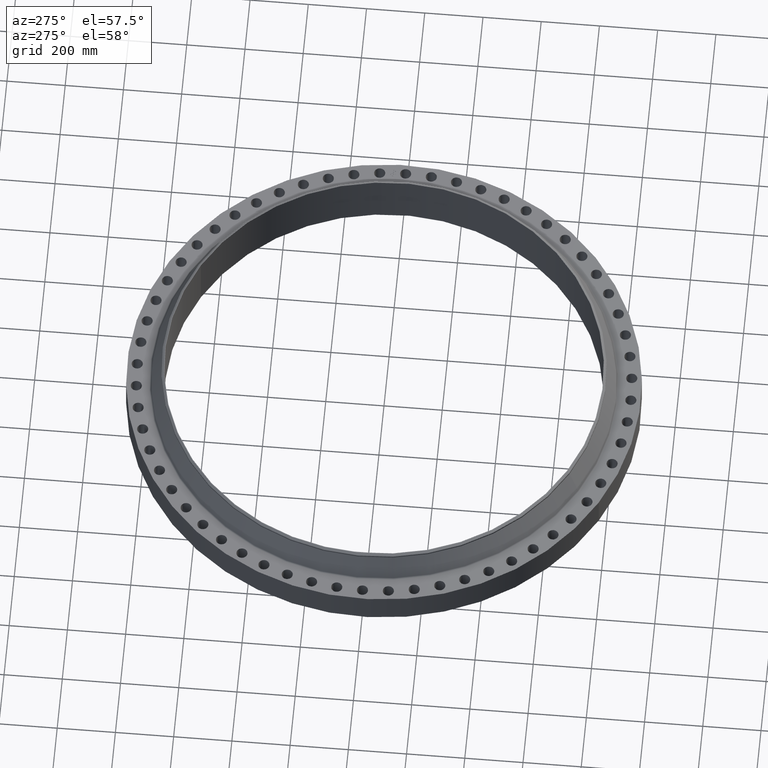
[diagram: clean part render]
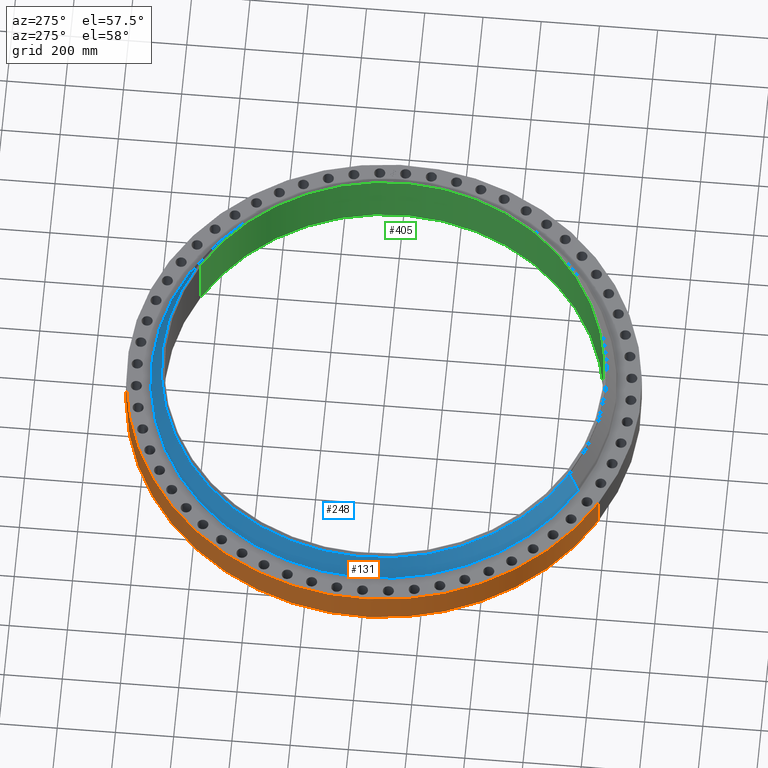
[diagram: same view with three faces highlighted in distinct colors, each labeled with its STEP entity id]
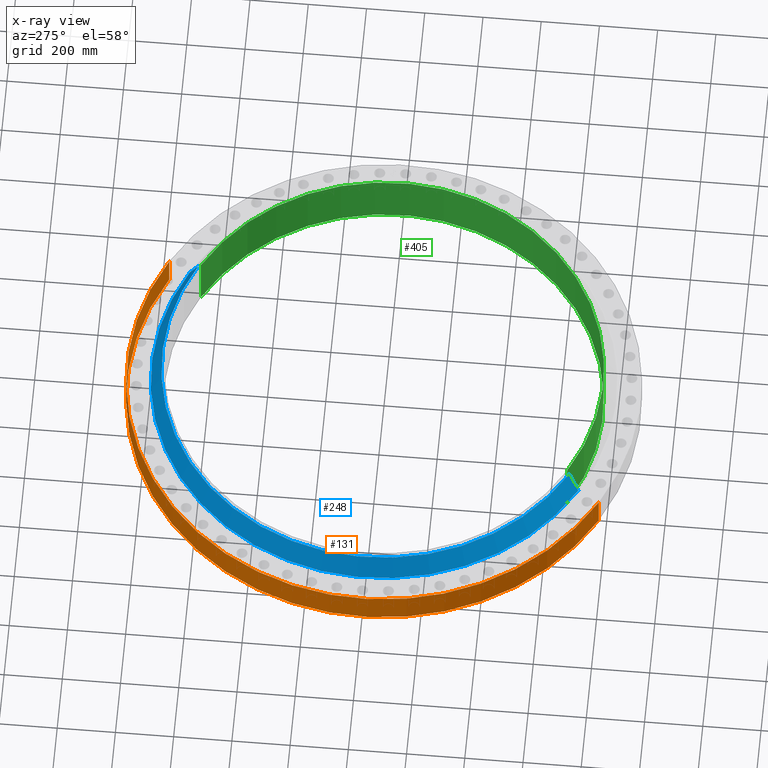
[diagram: x-ray of the same camera — body ghosted, the three highlighted faces saturated]
A machine part, auxiliary view with three faces highlighted in distinct colors.
The next image is the same camera in x-ray (body ghosted, the three faces saturated) — at least one of them is partly hidden behind the body in this view.
Their STEP definitions:

[orange] entity #131 — the highlighted cylindrical surface (partial cylindrical patch) has radius 882.65 mm, axis along (0, 0, -1).
#95=AXIS2_PLACEMENT_3D('Cylinder Axis2P3D',#92,#93,#94) ;
#99=AXIS2_PLACEMENT_3D('Circle Axis2P3D',#97,#98,$) ;
#115=AXIS2_PLACEMENT_3D('Circle Axis2P3D',#113,#114,$) ;
#92=CARTESIAN_POINT('Axis2P3D Location',(0.,0.,4.05000000002)) ;
#97=CARTESIAN_POINT('Axis2P3D Location',(0.,0.,4.47585975282E-015)) ;
#101=CARTESIAN_POINT('Vertex',(-16.6600374666,-30.4959940258,3.91637728372E-015)) ;
#103=CARTESIAN_POINT('Vertex',(16.6600374666,30.4959940258,3.91637728372E-015)) ;
#106=CARTESIAN_POINT('Line Origine',(-16.6600374666,-30.4959940258,2.25000000001)) ;
#110=CARTESIAN_POINT('Vertex',(-16.6600374666,-30.4959940258,4.50000000002)) ;
#113=CARTESIAN_POINT('Axis2P3D Location',(0.,0.,4.50000000002)) ;
#117=CARTESIAN_POINT('Vertex',(16.6600374666,30.4959940258,4.50000000002)) ;
#120=CARTESIAN_POINT('Line Origine',(16.6600374666,30.4959940258,2.25000000001)) ;
#93=DIRECTION('Axis2P3D Direction',(0.,0.,-0.0393700787402)) ;
#94=DIRECTION('Axis2P3D XDirection',(0.0188750212049,0.0345504945626,0.)) ;
#98=DIRECTION('Axis2P3D Direction',(0.,0.,-0.0393700787402)) ;
#107=DIRECTION('Vector Direction',(0.,0.,-0.0393700787402)) ;
#114=DIRECTION('Axis2P3D Direction',(0.,0.,-0.0393700787402)) ;
#121=DIRECTION('Vector Direction',(0.,0.,-0.0393700787402)) ;
#108=VECTOR('Line Direction',#107,0.0393700787402) ;
#122=VECTOR('Line Direction',#121,0.0393700787402) ;
#126=ORIENTED_EDGE('',*,*,#105,.F.) ;
#127=ORIENTED_EDGE('',*,*,#112,.T.) ;
#128=ORIENTED_EDGE('',*,*,#119,.T.) ;
#129=ORIENTED_EDGE('',*,*,#124,.F.) ;
#131=ADVANCED_FACE('PartBody',(#130),#96,.T.) ;
#100=CIRCLE('generated circle',#99,34.7500000001) ;
#116=CIRCLE('generated circle',#115,34.7500000001) ;
#96=CYLINDRICAL_SURFACE('generated cylinder',#95,34.7500000001) ;
#105=EDGE_CURVE('',#102,#104,#100,.T.) ;
#112=EDGE_CURVE('',#102,#111,#109,.F.) ;
#119=EDGE_CURVE('',#111,#118,#116,.T.) ;
#124=EDGE_CURVE('',#104,#118,#123,.F.) ;
#125=EDGE_LOOP('',(#126,#127,#128,#129)) ;
#130=FACE_OUTER_BOUND('',#125,.T.) ;
#109=LINE('Line',#106,#108) ;
#123=LINE('Line',#120,#122) ;
#102=VERTEX_POINT('',#101) ;
#104=VERTEX_POINT('',#103) ;
#111=VERTEX_POINT('',#110) ;
#118=VERTEX_POINT('',#117) ;

[blue] entity #248 — the highlighted conical surface has half-angle 26.383 deg.
#196=AXIS2_PLACEMENT_3D('Circle Axis2P3D',#194,#195,$) ;
#209=AXIS2_PLACEMENT_3D('Cone Axis2P3D',#206,#207,#208) ;
#239=AXIS2_PLACEMENT_3D('Circle Axis2P3D',#237,#238,$) ;
#167=CARTESIAN_POINT('Vertex',(15.0688706384,27.5833826836,4.6389078547)) ;
#174=CARTESIAN_POINT('Vertex',(-15.0688706384,-27.5833826836,4.6389078547)) ;
#194=CARTESIAN_POINT('Axis2P3D Location',(0.,0.,4.6389078547)) ;
#206=CARTESIAN_POINT('Axis2P3D Location',(0.,0.,7.52398984385)) ;
#211=CARTESIAN_POINT('Line Origine',(14.7258183983,26.9554297702,6.08144884927)) ;
#215=CARTESIAN_POINT('Vertex',(14.3827661582,26.3274768568,7.52398984385)) ;
#222=CARTESIAN_POINT('Vertex',(-14.3827661582,-26.3274768568,7.52398984385)) ;
#225=CARTESIAN_POINT('Line Origine',(-14.7258183983,-26.9554297702,6.08144884927)) ;
#237=CARTESIAN_POINT('Axis2P3D Location',(0.,0.,7.52398984385)) ;
#195=DIRECTION('Axis2P3D Direction',(0.,0.,-0.0393700787402)) ;
#207=DIRECTION('Axis2P3D Direction',(0.,0.,-0.0393700787402)) ;
#208=DIRECTION('Axis2P3D XDirection',(-0.0188750212049,-0.0345504945626,0.)) ;
#212=DIRECTION('Vector Direction',(0.00838746639452,0.0153531542514,-0.0352694508324)) ;
#226=DIRECTION('Vector Direction',(-0.00838746639452,-0.0153531542514,-0.0352694508324)) ;
#238=DIRECTION('Axis2P3D Direction',(0.,0.,-0.0393700787402)) ;
#213=VECTOR('Line Direction',#212,0.0393700787402) ;
#227=VECTOR('Line Direction',#226,0.0393700787402) ;
#243=ORIENTED_EDGE('',*,*,#198,.F.) ;
#244=ORIENTED_EDGE('',*,*,#229,.T.) ;
#245=ORIENTED_EDGE('',*,*,#241,.T.) ;
#246=ORIENTED_EDGE('',*,*,#217,.F.) ;
#248=ADVANCED_FACE('PartBody',(#247),#210,.T.) ;
#197=CIRCLE('generated circle',#196,31.431097063) ;
#240=CIRCLE('generated circle',#239,30.0000000001) ;
#210=CONICAL_SURFACE('Cone',#209,30.0000000001,0.460469306458) ;
#198=EDGE_CURVE('',#175,#168,#197,.T.) ;
#217=EDGE_CURVE('',#168,#216,#214,.F.) ;
#229=EDGE_CURVE('',#175,#223,#228,.F.) ;
#241=EDGE_CURVE('',#223,#216,#240,.T.) ;
#242=EDGE_LOOP('',(#243,#244,#245,#246)) ;
#247=FACE_OUTER_BOUND('',#242,.T.) ;
#214=LINE('Line',#211,#213) ;
#228=LINE('Line',#225,#227) ;
#168=VERTEX_POINT('',#167) ;
#175=VERTEX_POINT('',#174) ;
#216=VERTEX_POINT('',#215) ;
#223=VERTEX_POINT('',#222) ;

[green] entity #405 — the highlighted cylindrical surface (partial cylindrical patch) has radius 752.475 mm, axis along (0, 0, -1).
#355=AXIS2_PLACEMENT_3D('Circle Axis2P3D',#353,#354,$) ;
#366=AXIS2_PLACEMENT_3D('Cylinder Axis2P3D',#363,#364,#365) ;
#396=AXIS2_PLACEMENT_3D('Circle Axis2P3D',#394,#395,$) ;
#348=CARTESIAN_POINT('Vertex',(-14.2029815812,-25.9983833961,8.00000000003)) ;
#350=CARTESIAN_POINT('Vertex',(14.2029815812,25.9983833961,8.00000000003)) ;
#353=CARTESIAN_POINT('Axis2P3D Location',(-6.71378962923E-015,-4.47585975282E-015,8.00000000003)) ;
#363=CARTESIAN_POINT('Axis2P3D Location',(0.,0.,4.05000000002)) ;
#368=CARTESIAN_POINT('Line Origine',(-14.2029815812,-25.9983833961,4.00000000002)) ;
#372=CARTESIAN_POINT('Vertex',(-14.2029815812,-25.9983833961,-5.70672118484E-014)) ;
#379=CARTESIAN_POINT('Vertex',(14.2029815812,25.9983833961,-5.70672118484E-014)) ;
#382=CARTESIAN_POINT('Line Origine',(14.2029815812,25.9983833961,4.00000000002)) ;
#394=CARTESIAN_POINT('Axis2P3D Location',(0.,0.,-5.70672118484E-014)) ;
#354=DIRECTION('Axis2P3D Direction',(0.,-0.,-0.0393700787402)) ;
#364=DIRECTION('Axis2P3D Direction',(0.,0.,-0.0393700787402)) ;
#365=DIRECTION('Axis2P3D XDirection',(0.0188750212049,0.0345504945626,0.)) ;
#369=DIRECTION('Vector Direction',(0.,0.,-0.0393700787402)) ;
#383=DIRECTION('Vector Direction',(0.,0.,-0.0393700787402)) ;
#395=DIRECTION('Axis2P3D Direction',(0.,0.,-0.0393700787402)) ;
#370=VECTOR('Line Direction',#369,0.0393700787402) ;
#384=VECTOR('Line Direction',#383,0.0393700787402) ;
#400=ORIENTED_EDGE('',*,*,#386,.T.) ;
#401=ORIENTED_EDGE('',*,*,#398,.T.) ;
#402=ORIENTED_EDGE('',*,*,#374,.F.) ;
#403=ORIENTED_EDGE('',*,*,#357,.F.) ;
#405=ADVANCED_FACE('PartBody',(#404),#367,.F.) ;
#356=CIRCLE('generated circle',#355,29.6250000001) ;
#397=CIRCLE('generated circle',#396,29.6250000001) ;
#367=CYLINDRICAL_SURFACE('generated cylinder',#366,29.6250000001) ;
#357=EDGE_CURVE('',#351,#349,#356,.T.) ;
#374=EDGE_CURVE('',#349,#373,#371,.T.) ;
#386=EDGE_CURVE('',#351,#380,#385,.T.) ;
#398=EDGE_CURVE('',#380,#373,#397,.T.) ;
#399=EDGE_LOOP('',(#400,#401,#402,#403)) ;
#404=FACE_OUTER_BOUND('',#399,.T.) ;
#371=LINE('Line',#368,#370) ;
#385=LINE('Line',#382,#384) ;
#349=VERTEX_POINT('',#348) ;
#351=VERTEX_POINT('',#350) ;
#373=VERTEX_POINT('',#372) ;
#380=VERTEX_POINT('',#379) ;